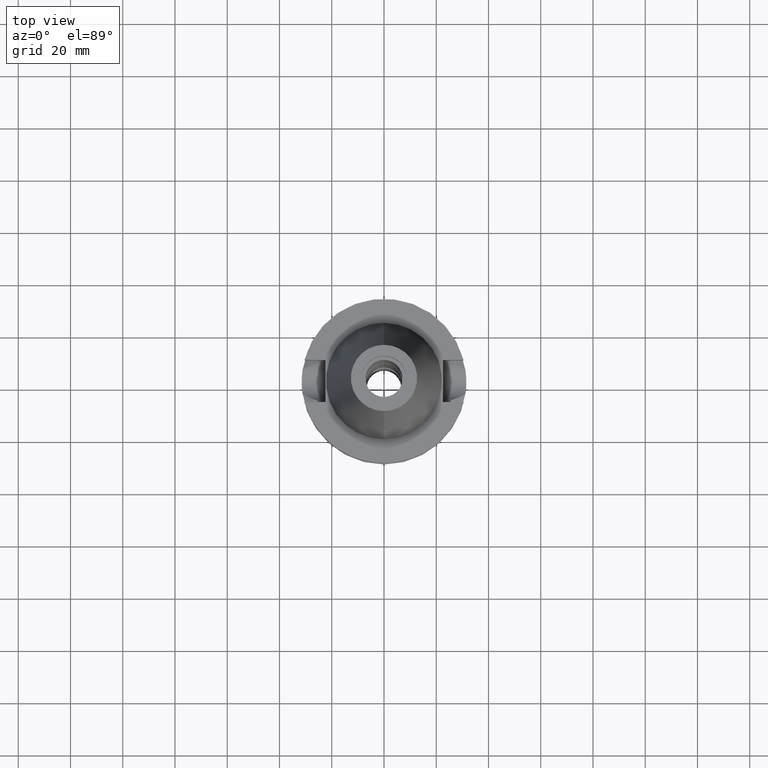
[diagram: clean part render]
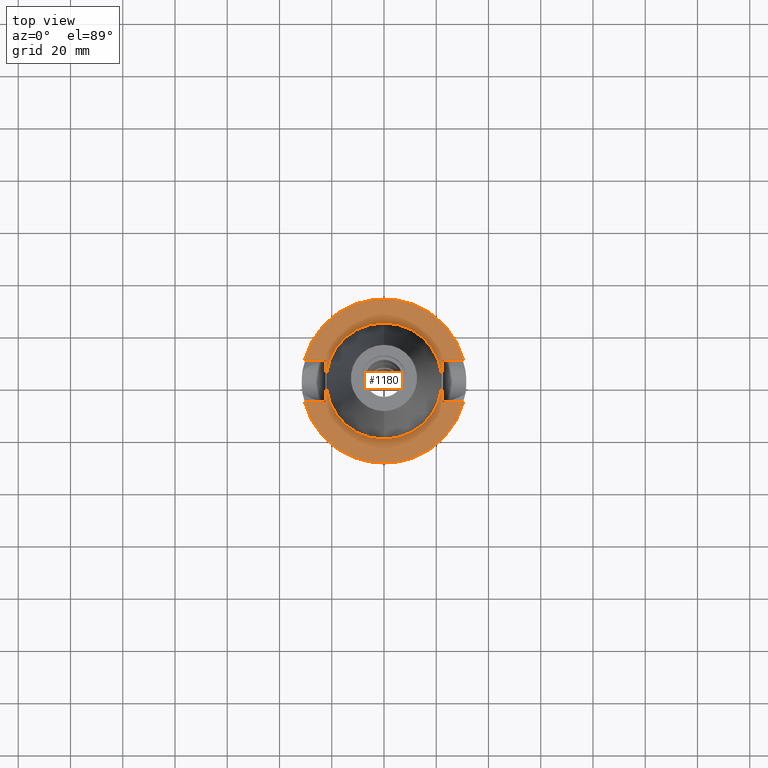
[diagram: same view with one face highlighted and labeled with its STEP entity id]
A machine part, top view. The second image highlights one B-rep face of the part: STEP entity #1180.
In plain terms, the highlighted planar face has unit normal (0, 0, -1).
Its self-contained STEP definition (entity closure, byte-faithful):
#22 = DIRECTION ( 'NONE',  ( -1.000000000000000000, -3.550916904668000126E-14, 0.0000000000000000000 ) ) ;
#50 = CIRCLE ( 'NONE', #2351, 22.22500000000000142 ) ;
#52 = ORIENTED_EDGE ( 'NONE', *, *, #2121, .F. ) ;
#53 = LINE ( 'NONE', #618, #3636 ) ;
#80 = CARTESIAN_POINT ( 'NONE',  ( 22.50000000000000000, 8.050000000000000711, -2.000000000000000000 ) ) ;
#91 = CARTESIAN_POINT ( 'NONE',  ( 0.0000000000000000000, 22.22500000000000142, -2.000000000000000000 ) ) ;
#169 = AXIS2_PLACEMENT_3D ( 'NONE', #486, #1006, #462 ) ;
#173 = FACE_OUTER_BOUND ( 'NONE', #187, .T. ) ;
#186 = VERTEX_POINT ( 'NONE', #1799 ) ;
#187 = EDGE_LOOP ( 'NONE', ( #564, #2202, #52, #2737, #2219, #547, #3008, #1836 ) ) ;
#248 = CARTESIAN_POINT ( 'NONE',  ( 0.0000000000000000000, -22.22500000000000142, -2.000000000000000000 ) ) ;
#262 = CARTESIAN_POINT ( 'NONE',  ( 22.50000000000000000, 8.050000000000000711, -2.000000000000000000 ) ) ;
#263 = EDGE_CURVE ( 'NONE', #1975, #1038, #696, .T. ) ;
#415 = VECTOR ( 'NONE', #22, 1000.000000000000000 ) ;
#447 = DIRECTION ( 'NONE',  ( 0.0000000000000000000, 0.0000000000000000000, -1.000000000000000000 ) ) ;
#462 = DIRECTION ( 'NONE',  ( 0.0000000000000000000, -1.000000000000000000, 0.0000000000000000000 ) ) ;
#477 = LINE ( 'NONE', #1598, #1997 ) ;
#486 = CARTESIAN_POINT ( 'NONE',  ( 0.0000000000000000000, 2.183177848839999781E-14, -2.000000000000000000 ) ) ;
#489 = LINE ( 'NONE', #1926, #3408 ) ;
#547 = ORIENTED_EDGE ( 'NONE', *, *, #2253, .F. ) ;
#564 = ORIENTED_EDGE ( 'NONE', *, *, #1259, .T. ) ;
#602 = DIRECTION ( 'NONE',  ( 1.000000000000000000, -3.506251283225999947E-14, 0.0000000000000000000 ) ) ;
#618 = CARTESIAN_POINT ( 'NONE',  ( 22.50000000000000000, 8.050000000000000711, -2.000000000000000000 ) ) ;
#645 = VERTEX_POINT ( 'NONE', #2570 ) ;
#690 = ORIENTED_EDGE ( 'NONE', *, *, #3465, .F. ) ;
#696 = CIRCLE ( 'NONE', #2579, 31.50000000000000000 ) ;
#764 = VECTOR ( 'NONE', #3598, 1000.000000000000000 ) ;
#863 = DIRECTION ( 'NONE',  ( 0.0000000000000000000, 0.0000000000000000000, 1.000000000000000000 ) ) ;
#910 = DIRECTION ( 'NONE',  ( 0.0000000000000000000, 1.000000000000000000, 0.0000000000000000000 ) ) ;
#946 = CARTESIAN_POINT ( 'NONE',  ( 0.0000000000000000000, 2.183177848839999781E-14, -2.000000000000000000 ) ) ;
#989 = ORIENTED_EDGE ( 'NONE', *, *, #2515, .F. ) ;
#1006 = DIRECTION ( 'NONE',  ( 0.0000000000000000000, 0.0000000000000000000, 1.000000000000000000 ) ) ;
#1038 = VERTEX_POINT ( 'NONE', #2852 ) ;
#1085 = DIRECTION ( 'NONE',  ( 0.0000000000000000000, -1.000000000000000000, 0.0000000000000000000 ) ) ;
#1086 = DIRECTION ( 'NONE',  ( 0.0000000000000000000, 1.000000000000000000, 0.0000000000000000000 ) ) ;
#1108 = CARTESIAN_POINT ( 'NONE',  ( -30.45402272279000044, 8.050000000000000711, -2.000000000000000000 ) ) ;
#1111 = AXIS2_PLACEMENT_3D ( 'NONE', #2673, #1295, #3286 ) ;
#1126 = LINE ( 'NONE', #262, #2696 ) ;
#1152 = CARTESIAN_POINT ( 'NONE',  ( -22.50000000000000000, 8.050000000000000711, -2.000000000000000000 ) ) ;
#1180 = ADVANCED_FACE ( 'NONE', ( #173, #3257 ), #1546, .F. ) ;
#1259 = EDGE_CURVE ( 'NONE', #645, #1038, #477, .T. ) ;
#1289 = DIRECTION ( 'NONE',  ( 0.0000000000000000000, -1.000000000000000000, 0.0000000000000000000 ) ) ;
#1295 = DIRECTION ( 'NONE',  ( 0.0000000000000000000, 0.0000000000000000000, -1.000000000000000000 ) ) ;
#1369 = VERTEX_POINT ( 'NONE', #248 ) ;
#1421 = CARTESIAN_POINT ( 'NONE',  ( 0.0000000000000000000, 2.183177848839999781E-14, -2.000000000000000000 ) ) ;
#1432 = EDGE_CURVE ( 'NONE', #2679, #1843, #1126, .T. ) ;
#1499 = CARTESIAN_POINT ( 'NONE',  ( 22.50000000000000000, -8.050000000000000711, -2.000000000000000000 ) ) ;
#1546 = PLANE ( 'NONE',  #1111 ) ;
#1598 = CARTESIAN_POINT ( 'NONE',  ( -22.50000000000000000, -8.050000000000000711, -2.000000000000000000 ) ) ;
#1654 = DIRECTION ( 'NONE',  ( 0.0000000000000000000, 1.000000000000000000, 0.0000000000000000000 ) ) ;
#1682 = LINE ( 'NONE', #1152, #415 ) ;
#1799 = CARTESIAN_POINT ( 'NONE',  ( -22.50000000000000000, 8.050000000000000711, -2.000000000000000000 ) ) ;
#1836 = ORIENTED_EDGE ( 'NONE', *, *, #3039, .F. ) ;
#1843 = VERTEX_POINT ( 'NONE', #1499 ) ;
#1926 = CARTESIAN_POINT ( 'NONE',  ( -22.50000000000000000, -8.050000000000000711, -2.000000000000000000 ) ) ;
#1975 = VERTEX_POINT ( 'NONE', #3006 ) ;
#1997 = VECTOR ( 'NONE', #2725, 1000.000000000000000 ) ;
#2059 = VERTEX_POINT ( 'NONE', #1108 ) ;
#2121 = EDGE_CURVE ( 'NONE', #1843, #1975, #2249, .T. ) ;
#2179 = CIRCLE ( 'NONE', #169, 22.22500000000000142 ) ;
#2202 = ORIENTED_EDGE ( 'NONE', *, *, #263, .F. ) ;
#2219 = ORIENTED_EDGE ( 'NONE', *, *, #2976, .T. ) ;
#2249 = LINE ( 'NONE', #3058, #764 ) ;
#2253 = EDGE_CURVE ( 'NONE', #2059, #3476, #2407, .T. ) ;
#2351 = AXIS2_PLACEMENT_3D ( 'NONE', #1421, #863, #1086 ) ;
#2407 = CIRCLE ( 'NONE', #3405, 31.50000000000000000 ) ;
#2515 = EDGE_CURVE ( 'NONE', #3211, #1369, #50, .T. ) ;
#2570 = CARTESIAN_POINT ( 'NONE',  ( -22.50000000000000000, -8.050000000000000711, -2.000000000000000000 ) ) ;
#2579 = AXIS2_PLACEMENT_3D ( 'NONE', #2682, #447, #1289 ) ;
#2673 = CARTESIAN_POINT ( 'NONE',  ( 0.0000000000000000000, 1.200153863163999924E-14, -2.000000000000000000 ) ) ;
#2679 = VERTEX_POINT ( 'NONE', #80 ) ;
#2682 = CARTESIAN_POINT ( 'NONE',  ( 0.0000000000000000000, 2.183177848839999781E-14, -2.000000000000000000 ) ) ;
#2696 = VECTOR ( 'NONE', #1085, 1000.000000000000000 ) ;
#2725 = DIRECTION ( 'NONE',  ( -1.000000000000000000, 3.550916904668000126E-14, 0.0000000000000000000 ) ) ;
#2737 = ORIENTED_EDGE ( 'NONE', *, *, #1432, .F. ) ;
#2852 = CARTESIAN_POINT ( 'NONE',  ( -30.45402272279000044, -8.050000000000000711, -2.000000000000000000 ) ) ;
#2853 = DIRECTION ( 'NONE',  ( 0.0000000000000000000, 0.0000000000000000000, -1.000000000000000000 ) ) ;
#2976 = EDGE_CURVE ( 'NONE', #2679, #3476, #53, .T. ) ;
#3006 = CARTESIAN_POINT ( 'NONE',  ( 30.45402272279000044, -8.050000000000000711, -2.000000000000000000 ) ) ;
#3008 = ORIENTED_EDGE ( 'NONE', *, *, #3525, .F. ) ;
#3039 = EDGE_CURVE ( 'NONE', #645, #186, #489, .T. ) ;
#3058 = CARTESIAN_POINT ( 'NONE',  ( 22.50000000000000000, -8.050000000000000711, -2.000000000000000000 ) ) ;
#3060 = CARTESIAN_POINT ( 'NONE',  ( 30.45402272279000044, 8.050000000000000711, -2.000000000000000000 ) ) ;
#3211 = VERTEX_POINT ( 'NONE', #91 ) ;
#3257 = FACE_BOUND ( 'NONE', #3365, .T. ) ;
#3286 = DIRECTION ( 'NONE',  ( 0.0000000000000000000, -1.000000000000000000, 0.0000000000000000000 ) ) ;
#3365 = EDGE_LOOP ( 'NONE', ( #989, #690 ) ) ;
#3405 = AXIS2_PLACEMENT_3D ( 'NONE', #946, #2853, #910 ) ;
#3408 = VECTOR ( 'NONE', #1654, 1000.000000000000000 ) ;
#3465 = EDGE_CURVE ( 'NONE', #1369, #3211, #2179, .T. ) ;
#3476 = VERTEX_POINT ( 'NONE', #3060 ) ;
#3525 = EDGE_CURVE ( 'NONE', #186, #2059, #1682, .T. ) ;
#3598 = DIRECTION ( 'NONE',  ( 1.000000000000000000, 3.573249715389999860E-14, 0.0000000000000000000 ) ) ;
#3636 = VECTOR ( 'NONE', #602, 1000.000000000000000 ) ;